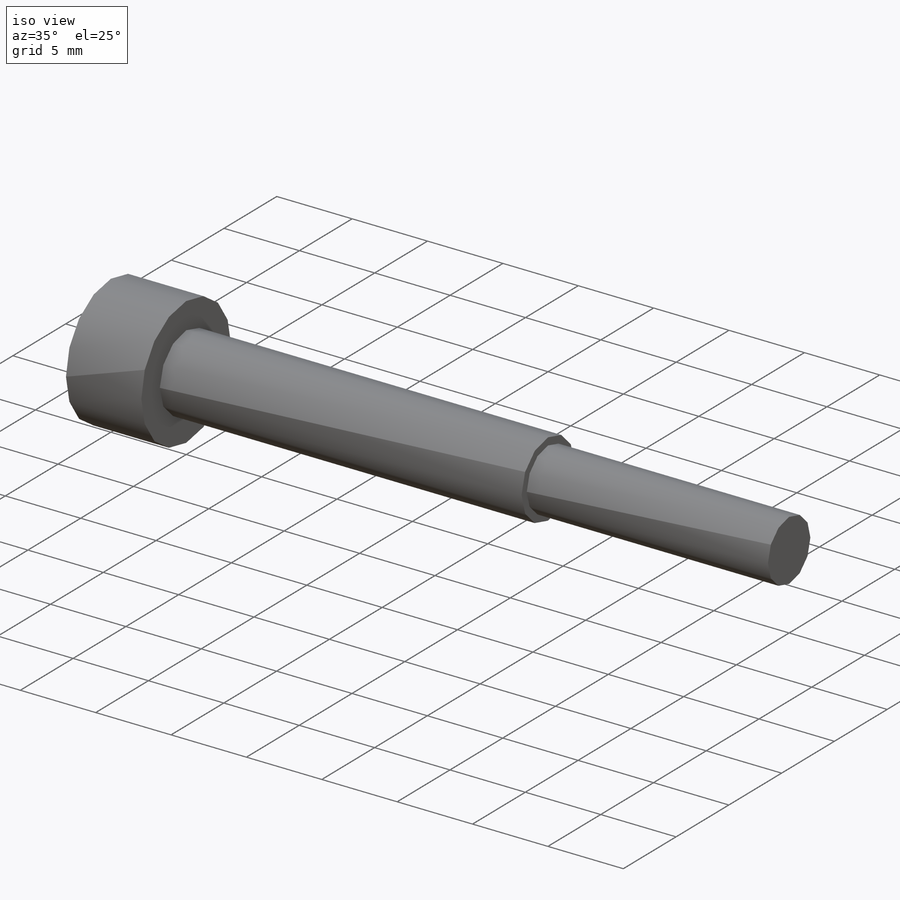
[diagram: iso view]
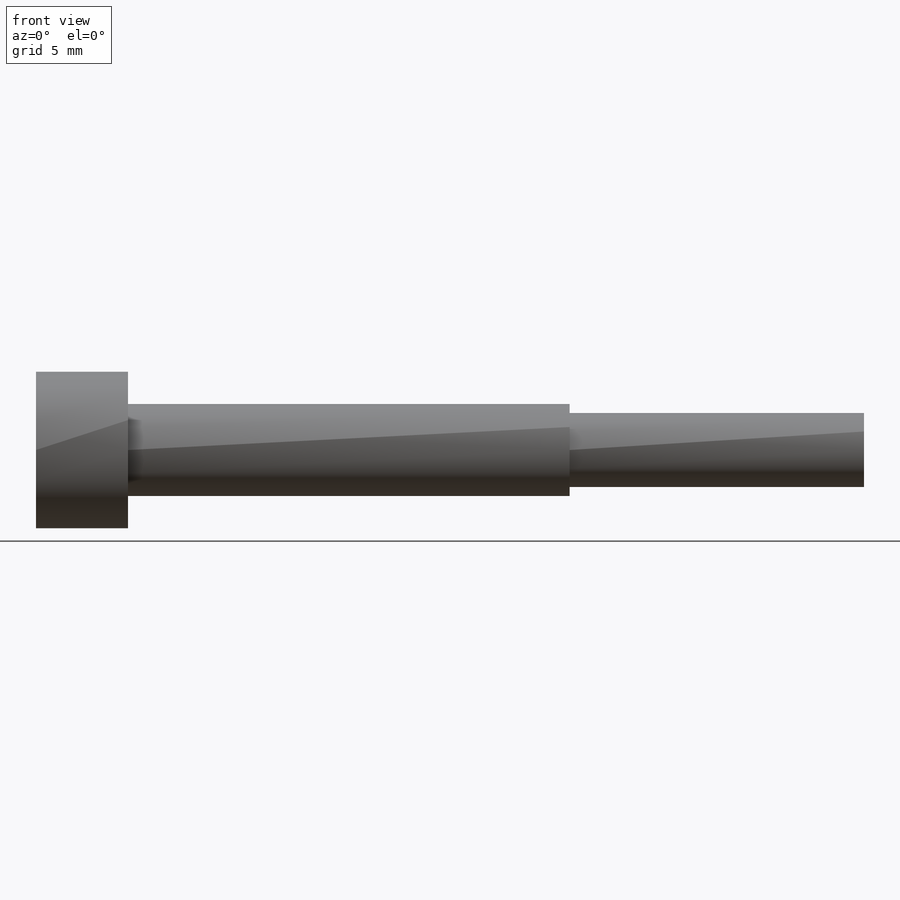
[diagram: front view]
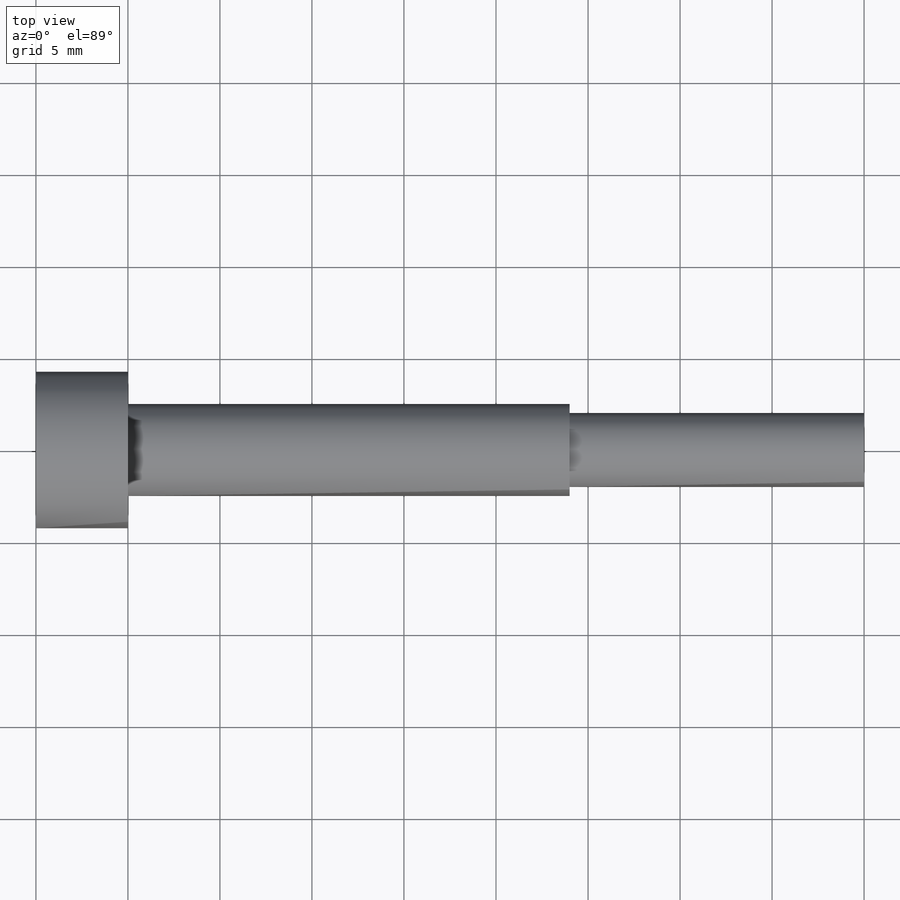
[diagram: top view]
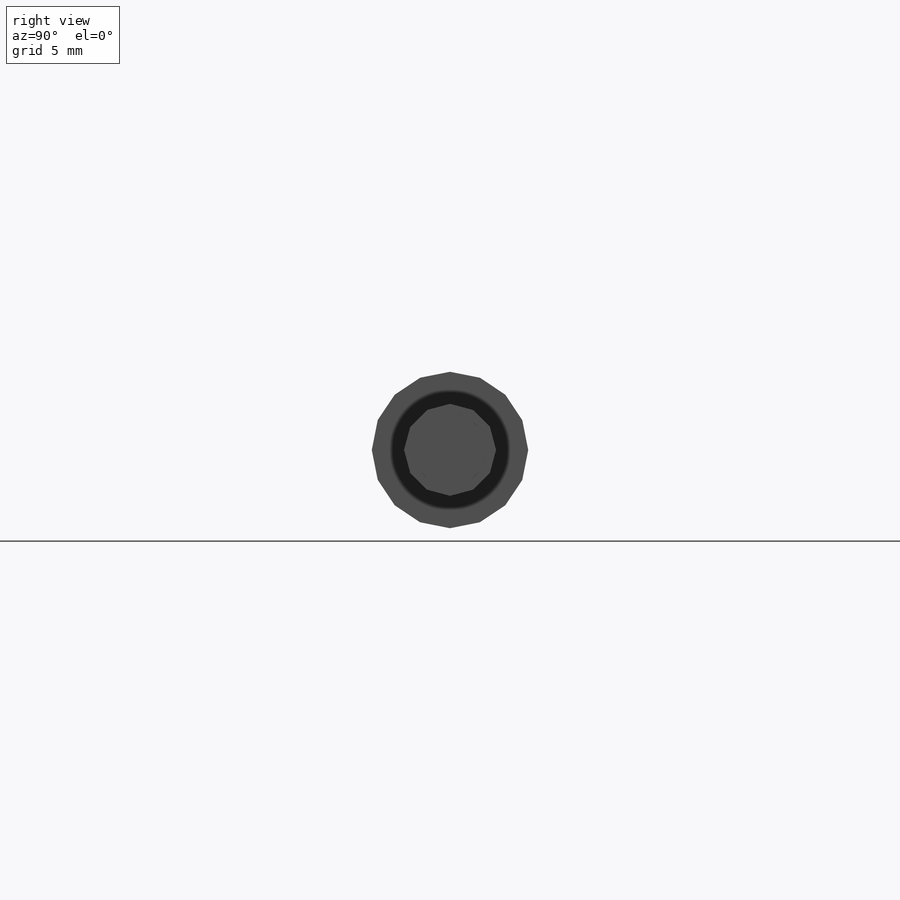
[diagram: right view]
SOLIDWORKS PART (.sldprt)
format: sldprt  version: not decoded by parser v0  size: 3,329,024 bytes
history: native  units: mm
features: plane x3, sketch x3, material x1, revolve x1, cut_extrude x1, extrude x1 (+9 scaffold rows collapsed)
feature tree (19):
  scaffold x9  (default folders/planes/origin — collapsed)
  material  "Material <not specified>"
  plane  "Vorne"
  plane  "Oben"
  plane  "Rechts"
  sketch  "Skizze1"  dims[c1.Dk=3.141mm c1.k=4.0mm c1.D3=~77.890681mm c1.D2=7.0mm c1.l=30.0mm c1.D5=~5.907439mm c1.D6=~8.669326mm c2.D6=135.0deg]
  revolve  "Basis-Rotation"  Angle=360deg
  sketch  "Skizze2"  dims[sw=3.0mm]
  cut_extrude  "Schnitt-Linear austragen1"  Depth=2mm t1=2mm
  sketch  "Skizze3"  dims[dn=10.0mm]
  extrude  "Aufsatz-Linear austragen1"  Depth=12mm b=12mm
decode coverage: 6 of 6 modeling features carry decoded parameters
note: ~ marks probable driven/reference dimensions
note: suppression state not decoded; provenance and decode notes live in map.json
